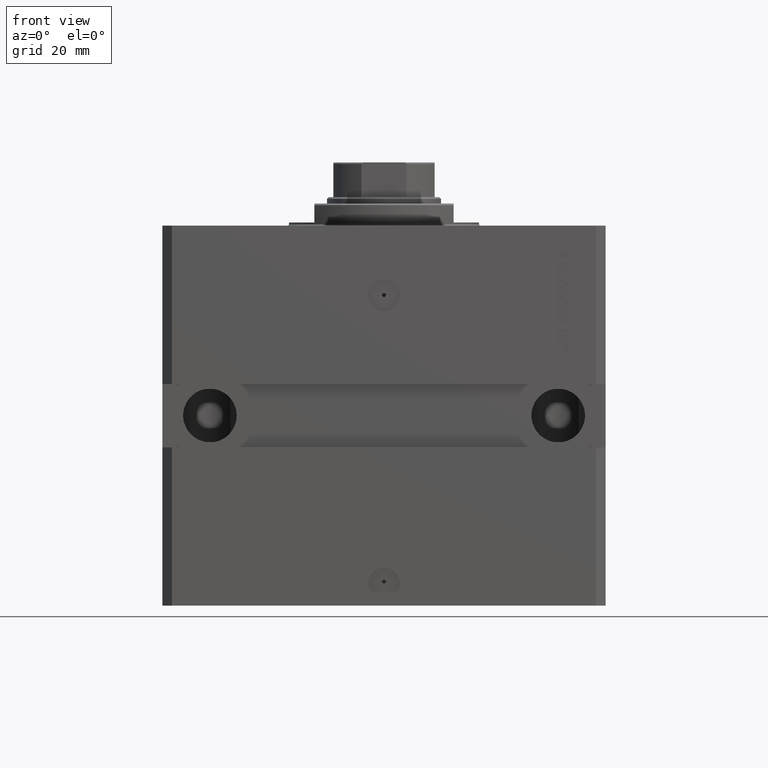
[diagram: clean part render]
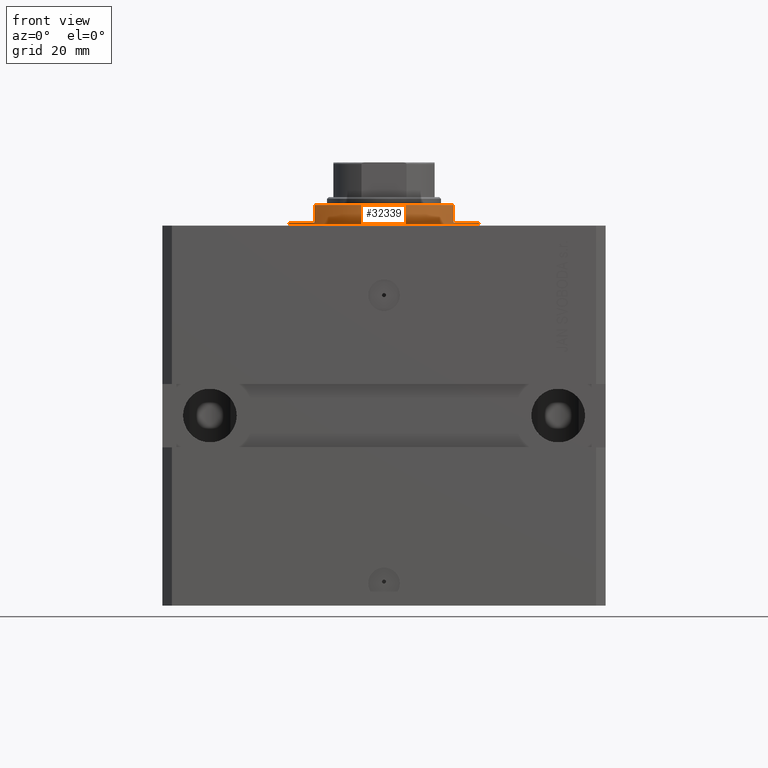
[diagram: same view with one face highlighted and labeled with its STEP entity id]
A machine part, front view. The second image highlights one B-rep face of the part: STEP entity #32339.
In plain terms, the highlighted cylindrical surface (partial cylindrical patch) has radius 30 mm, axis along (0, 0, -1).
Its self-contained STEP definition (entity closure, byte-faithful):
#375 = CIRCLE ( 'NONE', #32270, 30.00000000000000000 ) ;
#2421 = DIRECTION ( 'NONE',  ( -0.000000000000000000, -0.000000000000000000, 1.000000000000000000 ) ) ;
#2811 = VERTEX_POINT ( 'NONE', #5743 ) ;
#3191 = VERTEX_POINT ( 'NONE', #25116 ) ;
#3192 = EDGE_CURVE ( 'NONE', #23661, #45952, #44030, .T. ) ;
#3560 = ORIENTED_EDGE ( 'NONE', *, *, #13857, .F. ) ;
#4612 = DIRECTION ( 'NONE',  ( -0.000000000000000000, -0.000000000000000000, -1.000000000000000000 ) ) ;
#5465 = DIRECTION ( 'NONE',  ( -1.000000000000000000, 0.000000000000000000, 0.000000000000000000 ) ) ;
#5743 = CARTESIAN_POINT ( 'NONE',  ( -30.00000000000000000, 3.673940397442059178E-15, -1.000000000000000000 ) ) ;
#5795 = DIRECTION ( 'NONE',  ( 0.000000000000000000, 0.000000000000000000, -1.000000000000000000 ) ) ;
#6273 = CARTESIAN_POINT ( 'NONE',  ( 0.000000000000000000, 0.000000000000000000, -0.4999999999999995559 ) ) ;
#6301 = DIRECTION ( 'NONE',  ( 1.000000000000000000, 0.000000000000000000, 0.000000000000000000 ) ) ;
#6476 = EDGE_CURVE ( 'NONE', #47443, #37767, #375, .T. ) ;
#6611 = AXIS2_PLACEMENT_3D ( 'NONE', #28119, #24140, #8876 ) ;
#6627 = VERTEX_POINT ( 'NONE', #28571 ) ;
#8876 = DIRECTION ( 'NONE',  ( -1.000000000000000000, 0.000000000000000000, 0.000000000000000000 ) ) ;
#9263 = CIRCLE ( 'NONE', #19664, 30.00000000000000000 ) ;
#9514 = CARTESIAN_POINT ( 'NONE',  ( 30.00000000000000000, 0.000000000000000000, -1.000000000000000000 ) ) ;
#10029 = CARTESIAN_POINT ( 'NONE',  ( 22.00000000000000000, -20.39607805437114152, -7.000000000000000000 ) ) ;
#10773 = VECTOR ( 'NONE', #36507, 1000.000000000000000 ) ;
#10778 = CYLINDRICAL_SURFACE ( 'NONE', #14698, 30.00000000000000000 ) ;
#10796 = ORIENTED_EDGE ( 'NONE', *, *, #44375, .F. ) ;
#11473 = EDGE_CURVE ( 'NONE', #6627, #47443, #12319, .T. ) ;
#11989 = VECTOR ( 'NONE', #2421, 1000.000000000000000 ) ;
#12319 = LINE ( 'NONE', #39036, #10773 ) ;
#13857 = EDGE_CURVE ( 'NONE', #6627, #2811, #9263, .T. ) ;
#13980 = ORIENTED_EDGE ( 'NONE', *, *, #3192, .F. ) ;
#14066 = EDGE_CURVE ( 'NONE', #45952, #37767, #22039, .T. ) ;
#14698 = AXIS2_PLACEMENT_3D ( 'NONE', #48955, #43975, #6301 ) ;
#16076 = AXIS2_PLACEMENT_3D ( 'NONE', #6273, #4612, #46768 ) ;
#16785 = DIRECTION ( 'NONE',  ( -1.000000000000000000, 0.000000000000000000, 0.000000000000000000 ) ) ;
#17164 = LINE ( 'NONE', #20916, #11989 ) ;
#17543 = FACE_OUTER_BOUND ( 'NONE', #39247, .T. ) ;
#17781 = CARTESIAN_POINT ( 'NONE',  ( 22.00000000000000000, -20.39607805437114152, -1.000000000000000000 ) ) ;
#18192 = DIRECTION ( 'NONE',  ( -0.000000000000000000, -0.000000000000000000, 1.000000000000000000 ) ) ;
#19664 = AXIS2_PLACEMENT_3D ( 'NONE', #39976, #5795, #16785 ) ;
#20032 = ORIENTED_EDGE ( 'NONE', *, *, #41309, .T. ) ;
#20916 = CARTESIAN_POINT ( 'NONE',  ( 30.00000000000000000, 0.000000000000000000, -7.000000000000000000 ) ) ;
#22039 = LINE ( 'NONE', #10029, #30809 ) ;
#22065 = ORIENTED_EDGE ( 'NONE', *, *, #11473, .T. ) ;
#23661 = VERTEX_POINT ( 'NONE', #9514 ) ;
#24140 = DIRECTION ( 'NONE',  ( 0.000000000000000000, 0.000000000000000000, -1.000000000000000000 ) ) ;
#24848 = ORIENTED_EDGE ( 'NONE', *, *, #6476, .T. ) ;
#25036 = DIRECTION ( 'NONE',  ( 0.000000000000000000, 0.000000000000000000, -1.000000000000000000 ) ) ;
#25116 = CARTESIAN_POINT ( 'NONE',  ( -30.00000000000000000, 3.673940397442059178E-15, -0.4999999999999995559 ) ) ;
#28119 = CARTESIAN_POINT ( 'NONE',  ( 0.000000000000000000, 0.000000000000000000, -1.000000000000000000 ) ) ;
#28571 = CARTESIAN_POINT ( 'NONE',  ( -22.00000000000000000, -20.39607805437114152, -1.000000000000000000 ) ) ;
#30098 = EDGE_CURVE ( 'NONE', #44311, #3191, #47155, .T. ) ;
#30161 = LINE ( 'NONE', #37640, #36007 ) ;
#30809 = VECTOR ( 'NONE', #25036, 1000.000000000000000 ) ;
#30923 = ORIENTED_EDGE ( 'NONE', *, *, #30098, .T. ) ;
#31695 = DIRECTION ( 'NONE',  ( 0.000000000000000000, 0.000000000000000000, 1.000000000000000000 ) ) ;
#32270 = AXIS2_PLACEMENT_3D ( 'NONE', #34933, #31695, #5465 ) ;
#32339 = ADVANCED_FACE ( 'NONE', ( #17543 ), #10778, .T. ) ;
#32683 = CARTESIAN_POINT ( 'NONE',  ( -22.00000000000000000, -20.39607805437114152, -6.500000000000006217 ) ) ;
#34933 = CARTESIAN_POINT ( 'NONE',  ( 0.000000000000000000, 0.000000000000000000, -6.500000000000006217 ) ) ;
#36007 = VECTOR ( 'NONE', #18192, 1000.000000000000000 ) ;
#36507 = DIRECTION ( 'NONE',  ( 0.000000000000000000, 0.000000000000000000, -1.000000000000000000 ) ) ;
#37640 = CARTESIAN_POINT ( 'NONE',  ( -30.00000000000000000, 3.673940397442059178E-15, -7.000000000000000000 ) ) ;
#37767 = VERTEX_POINT ( 'NONE', #45170 ) ;
#39036 = CARTESIAN_POINT ( 'NONE',  ( -22.00000000000000000, -20.39607805437114152, -7.000000000000000000 ) ) ;
#39247 = EDGE_LOOP ( 'NONE', ( #10796, #3560, #22065, #24848, #42945, #13980, #20032, #30923 ) ) ;
#39976 = CARTESIAN_POINT ( 'NONE',  ( 0.000000000000000000, 0.000000000000000000, -1.000000000000000000 ) ) ;
#41309 = EDGE_CURVE ( 'NONE', #23661, #44311, #17164, .T. ) ;
#42945 = ORIENTED_EDGE ( 'NONE', *, *, #14066, .F. ) ;
#43975 = DIRECTION ( 'NONE',  ( -0.000000000000000000, -0.000000000000000000, 1.000000000000000000 ) ) ;
#44030 = CIRCLE ( 'NONE', #6611, 30.00000000000000000 ) ;
#44132 = CARTESIAN_POINT ( 'NONE',  ( 30.00000000000000000, 0.000000000000000000, -0.4999999999999995559 ) ) ;
#44311 = VERTEX_POINT ( 'NONE', #44132 ) ;
#44375 = EDGE_CURVE ( 'NONE', #2811, #3191, #30161, .T. ) ;
#45170 = CARTESIAN_POINT ( 'NONE',  ( 22.00000000000000000, -20.39607805437114152, -6.500000000000006217 ) ) ;
#45952 = VERTEX_POINT ( 'NONE', #17781 ) ;
#46768 = DIRECTION ( 'NONE',  ( 1.000000000000000000, 0.000000000000000000, 0.000000000000000000 ) ) ;
#47155 = CIRCLE ( 'NONE', #16076, 30.00000000000000000 ) ;
#47443 = VERTEX_POINT ( 'NONE', #32683 ) ;
#48955 = CARTESIAN_POINT ( 'NONE',  ( 0.000000000000000000, 0.000000000000000000, -7.000000000000000000 ) ) ;